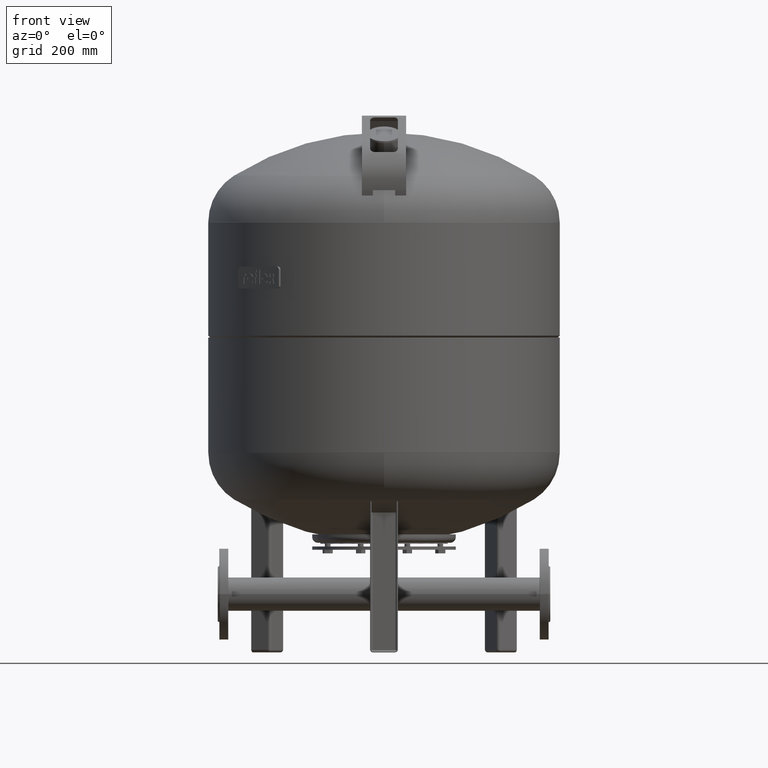
[diagram: clean part render]
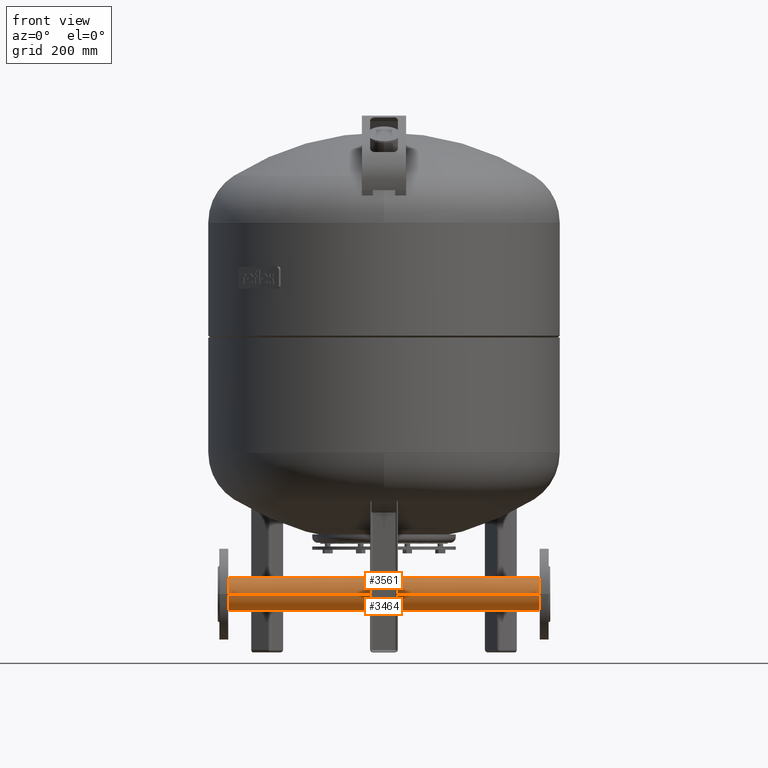
[diagram: same view with one multi-face feature highlighted, each face labeled with its STEP entity id]
A machine part, front view. The highlighted faces form ONE feature: a constant-radius fillet chain: 2 tangent blend faces with common blend radius 30.15 mm. The faces share edges in the B-rep.
Their STEP definitions:
[1] entity #3464 (Cylinder):
#3423=CARTESIAN_POINT('',(-247.500000000000030,0.0,105.000000000000010));
#3424=DIRECTION('',(-1.0,0.0,0.0));
#3425=DIRECTION('',(0.0,-1.0,0.0));
#3426=AXIS2_PLACEMENT_3D('',#3423,#3424,#3425);
#3427=CYLINDRICAL_SURFACE('',#3426,30.149999999999999);
#3428=CARTESIAN_POINT('',(-290.0,-30.149999999999999,105.000000000000010));
#3429=VERTEX_POINT('',#3428);
#3430=CARTESIAN_POINT('',(290.0,-30.149999999999999,105.000000000000010));
#3431=VERTEX_POINT('',#3430);
#3432=CARTESIAN_POINT('',(-290.0,-30.149999999999999,105.000000000000010));
#3433=DIRECTION('',(1.0,0.0,0.0));
#3434=VECTOR('',#3433,580.0);
#3435=LINE('',#3432,#3434);
#3436=EDGE_CURVE('',#3429,#3431,#3435,.T.);
#3437=ORIENTED_EDGE('',*,*,#3436,.F.);
#3438=CARTESIAN_POINT('',(-290.0,30.149999999999999,105.000000000000010));
#3439=VERTEX_POINT('',#3438);
#3440=CARTESIAN_POINT('',(-290.0,0.0,105.000000000000010));
#3441=DIRECTION('',(-1.0,0.0,0.0));
#3442=DIRECTION('',(0.0,-1.0,0.0));
#3443=AXIS2_PLACEMENT_3D('',#3440,#3441,#3442);
#3444=CIRCLE('',#3443,30.149999999999999);
#3445=EDGE_CURVE('',#3439,#3429,#3444,.T.);
#3446=ORIENTED_EDGE('',*,*,#3445,.F.);
#3447=CARTESIAN_POINT('',(290.0,30.149999999999999,105.000000000000010));
#3448=VERTEX_POINT('',#3447);
#3449=CARTESIAN_POINT('',(-290.0,30.149999999999999,105.000000000000010));
#3450=DIRECTION('',(1.0,0.0,0.0));
#3451=VECTOR('',#3450,580.0);
#3452=LINE('',#3449,#3451);
#3453=EDGE_CURVE('',#3439,#3448,#3452,.T.);
#3454=ORIENTED_EDGE('',*,*,#3453,.T.);
#3455=CARTESIAN_POINT('',(290.0,0.0,105.000000000000010));
#3456=DIRECTION('',(-1.0,0.0,0.0));
#3457=DIRECTION('',(0.0,-1.0,0.0));
#3458=AXIS2_PLACEMENT_3D('',#3455,#3456,#3457);
#3459=CIRCLE('',#3458,30.149999999999999);
#3460=EDGE_CURVE('',#3448,#3431,#3459,.T.);
#3461=ORIENTED_EDGE('',*,*,#3460,.T.);
#3462=EDGE_LOOP('',(#3437,#3446,#3454,#3461));
#3463=FACE_OUTER_BOUND('',#3462,.T.);
#3464=ADVANCED_FACE('',(#3463),#3427,.T.);
[2] entity #3561 (Cylinder):
#3342=CARTESIAN_POINT('',(21.199999999999999,-2.609024E-015,135.150000000000010));
#3343=VERTEX_POINT('',#3342);
#3359=CARTESIAN_POINT('',(-21.199999999999999,1.174516E-016,135.150000000000010));
#3360=VERTEX_POINT('',#3359);
#3367=CARTESIAN_POINT('',(-21.199999999999999,1.174516E-016,135.150000000000010));
#3368=CARTESIAN_POINT('',(-21.199999999999999,-0.692424463802574,135.150000000000010));
#3369=CARTESIAN_POINT('',(-21.165935953021979,-1.392810315598920,135.126016699084800));
#3370=CARTESIAN_POINT('',(-21.026689683411448,-2.795547585032419,135.028348546475060));
#3371=CARTESIAN_POINT('',(-20.921514108978613,-3.497899874539565,134.954666738567880));
#3372=CARTESIAN_POINT('',(-20.640293834098223,-4.891147777178428,134.758932043428220));
#3373=CARTESIAN_POINT('',(-20.464233142206339,-5.582164854495862,134.636869678730330));
#3374=CARTESIAN_POINT('',(-20.044298166574940,-6.940570118563637,134.348476881195150));
#3375=CARTESIAN_POINT('',(-19.800430605333130,-7.607962441822135,134.182156143751230));
#3376=CARTESIAN_POINT('',(-18.975653616749948,-9.558091962107202,133.626782597700900));
#3377=CARTESIAN_POINT('',(-18.299365878424485,-10.790956065838744,133.179683922580720));
#3378=CARTESIAN_POINT('',(-16.760689968101303,-13.053382550245647,132.205670783889360));
#3379=CARTESIAN_POINT('',(-15.898221526559425,-14.083105995750191,131.679257316634730));
#3380=CARTESIAN_POINT('',(-14.069634709298327,-15.911692813011289,130.631375307075160));
#3381=CARTESIAN_POINT('',(-13.032483173576519,-16.776835791091745,130.068911244167960));
#3382=CARTESIAN_POINT('',(-10.770474659120383,-18.311327432634471,128.970978657677730));
#3383=CARTESIAN_POINT('',(-9.545638514802816,-18.981139041615187,128.436114363689540));
#3384=CARTESIAN_POINT('',(-7.610014691062727,-19.799453070613165,127.740544089781820));
#3385=CARTESIAN_POINT('',(-6.947878212434456,-20.041603786611901,127.526344684308500));
#3386=CARTESIAN_POINT('',(-5.598491737269096,-20.459613492442507,127.147376885702030));
#3387=CARTESIAN_POINT('',(-4.911223760015368,-20.635469711143067,126.982669462361640));
#3388=CARTESIAN_POINT('',(-3.521485533583976,-20.917501469864487,126.714476737709160));
#3389=CARTESIAN_POINT('',(-2.818855133579346,-21.023692310502291,126.611030354442650));
#3390=CARTESIAN_POINT('',(-1.409466051565068,-21.164947155060695,126.472710198633070));
#3391=CARTESIAN_POINT('',(-0.702702430289923,-21.199999999999999,126.437875361145270));
#3392=CARTESIAN_POINT('',(0.702702430289923,-21.199999999999999,126.437875361145270));
#3393=CARTESIAN_POINT('',(1.409466051565070,-21.164947155060695,126.472710198633070));
#3394=CARTESIAN_POINT('',(2.818855133579349,-21.023692310502291,126.611030354442650));
#3395=CARTESIAN_POINT('',(3.521485533583979,-20.917501469864483,126.714476737709150));
#3396=CARTESIAN_POINT('',(4.911223760015371,-20.635469711143060,126.982669462361630));
#3397=CARTESIAN_POINT('',(5.598491737269102,-20.459613492442507,127.147376885702030));
#3398=CARTESIAN_POINT('',(6.947878212434461,-20.041603786611901,127.526344684308500));
#3399=CARTESIAN_POINT('',(7.610014691062727,-19.799453070613154,127.740544089781820));
#3400=CARTESIAN_POINT('',(9.545638514802814,-18.981139041615187,128.436114363689540));
#3401=CARTESIAN_POINT('',(10.770474659120378,-18.311327432634471,128.970978657677700));
#3402=CARTESIAN_POINT('',(13.032483173576514,-16.776835791091749,130.068911244167960));
#3403=CARTESIAN_POINT('',(14.069634709298320,-15.911692813011291,130.631375307075160));
#3404=CARTESIAN_POINT('',(15.898221526559418,-14.083105995750193,131.679257316634730));
#3405=CARTESIAN_POINT('',(16.760689968101296,-13.053382550245651,132.205670783889360));
#3406=CARTESIAN_POINT('',(18.299365878424478,-10.790956065838753,133.179683922580720));
#3407=CARTESIAN_POINT('',(18.975653616749945,-9.558091962107213,133.626782597700900));
#3408=CARTESIAN_POINT('',(19.800430605333126,-7.607962441822153,134.182156143751230));
#3409=CARTESIAN_POINT('',(20.044298166574929,-6.940570118563654,134.348476881195130));
#3410=CARTESIAN_POINT('',(20.464233142206329,-5.582164854495876,134.636869678730310));
#3411=CARTESIAN_POINT('',(20.640293834098216,-4.891147777178439,134.758932043428220));
#3412=CARTESIAN_POINT('',(20.921514108978613,-3.497899874539569,134.954666738567880));
#3413=CARTESIAN_POINT('',(21.026689683411448,-2.795547585032419,135.028348546475060));
#3414=CARTESIAN_POINT('',(21.165935953021979,-1.392810315598921,135.126016699084800));
#3415=CARTESIAN_POINT('',(21.199999999999999,-0.692424463802574,135.150000000000010));
#3416=CARTESIAN_POINT('',(21.199999999999999,-2.609024E-015,135.150000000000010));
#3417=B_SPLINE_CURVE_WITH_KNOTS('',3,(#3367,#3368,#3369,#3370,#3371,#3372,#3373,#3374,#3375,#3376,#3377,#3378,#3379,#3380,#3381,#3382,#3383,#3384,#3385,#3386,#3387,#3388,#3389,#3390,#3391,#3392,#3393,#3394,#3395,#3396,#3397,#3398,#3399,#3400,#3401,#3402,#3403,#3404,#3405,#3406,#3407,#3408,#3409,#3410,#3411,#3412,#3413,#3414,#3415,#3416),.UNSPECIFIED.,.F.,.U.,(4,2,2,2,2,2,2,2,2,2,2,2,2,2,2,2,2,2,2,2,2,2,2,2,4),(33.483045458219962,35.560318849627684,37.637592241035406,39.714865632443122,41.792139023850844,45.946685806666281,50.101232589481725,54.317447171221275,58.533661752960832,60.641769043830607,62.749876334700389,64.857983625570171,66.966090916439938,69.074198207309706,71.182305498179488,73.290412789049270,75.398520079919038,79.614734661658588,83.830949243398138,87.985496026213582,92.140042809029012,94.217316200436727,96.294589591844456,98.371862983252186,100.449136374659900),.UNSPECIFIED.);
#3418=EDGE_CURVE('',#3360,#3343,#3417,.T.);
#3428=CARTESIAN_POINT('',(-290.0,-30.149999999999999,105.000000000000010));
#3429=VERTEX_POINT('',#3428);
#3430=CARTESIAN_POINT('',(290.0,-30.149999999999999,105.000000000000010));
#3431=VERTEX_POINT('',#3430);
#3432=CARTESIAN_POINT('',(-290.0,-30.149999999999999,105.000000000000010));
#3433=DIRECTION('',(1.0,0.0,0.0));
#3434=VECTOR('',#3433,580.0);
#3435=LINE('',#3432,#3434);
#3436=EDGE_CURVE('',#3429,#3431,#3435,.T.);
#3438=CARTESIAN_POINT('',(-290.0,30.149999999999999,105.000000000000010));
#3439=VERTEX_POINT('',#3438);
#3447=CARTESIAN_POINT('',(290.0,30.149999999999999,105.000000000000010));
#3448=VERTEX_POINT('',#3447);
#3449=CARTESIAN_POINT('',(-290.0,30.149999999999999,105.000000000000010));
#3450=DIRECTION('',(1.0,0.0,0.0));
#3451=VECTOR('',#3450,580.0);
#3452=LINE('',#3449,#3451);
#3453=EDGE_CURVE('',#3439,#3448,#3452,.T.);
#3470=CARTESIAN_POINT('',(290.0,0.0,105.000000000000010));
#3471=DIRECTION('',(-1.0,0.0,0.0));
#3472=DIRECTION('',(0.0,-1.0,0.0));
#3473=AXIS2_PLACEMENT_3D('',#3470,#3471,#3472);
#3474=CIRCLE('',#3473,30.149999999999999);
#3475=EDGE_CURVE('',#3431,#3448,#3474,.T.);
#3481=CARTESIAN_POINT('',(-247.500000000000030,0.0,105.000000000000010));
#3482=DIRECTION('',(-1.0,0.0,0.0));
#3483=DIRECTION('',(0.0,-1.0,0.0));
#3484=AXIS2_PLACEMENT_3D('',#3481,#3482,#3483);
#3485=CYLINDRICAL_SURFACE('',#3484,30.149999999999999);
#3486=ORIENTED_EDGE('',*,*,#3436,.T.);
#3487=ORIENTED_EDGE('',*,*,#3475,.T.);
#3488=ORIENTED_EDGE('',*,*,#3453,.F.);
#3489=CARTESIAN_POINT('',(-290.0,0.0,105.000000000000010));
#3490=DIRECTION('',(-1.0,0.0,0.0));
#3491=DIRECTION('',(0.0,-1.0,0.0));
#3492=AXIS2_PLACEMENT_3D('',#3489,#3490,#3491);
#3493=CIRCLE('',#3492,30.149999999999999);
#3494=EDGE_CURVE('',#3429,#3439,#3493,.T.);
#3495=ORIENTED_EDGE('',*,*,#3494,.F.);
#3496=EDGE_LOOP('',(#3486,#3487,#3488,#3495));
#3497=FACE_OUTER_BOUND('',#3496,.T.);
#3498=CARTESIAN_POINT('',(0.0,21.199999999999999,126.437875361145270));
#3499=VERTEX_POINT('',#3498);
#3500=CARTESIAN_POINT('',(0.0,21.199999999999999,126.437875361145270));
#3501=CARTESIAN_POINT('',(-0.702702430289925,21.199999999999999,126.437875361145270));
#3502=CARTESIAN_POINT('',(-1.409466051565075,21.164947155060695,126.472710198633070));
#3503=CARTESIAN_POINT('',(-2.818855133579354,21.023692310502291,126.611030354442650));
#3504=CARTESIAN_POINT('',(-3.521485533583982,20.917501469864483,126.714476737709150));
#3505=CARTESIAN_POINT('',(-4.911223760015369,20.635469711143060,126.982669462361630));
#3506=CARTESIAN_POINT('',(-5.598491737269096,20.459613492442507,127.147376885702030));
#3507=CARTESIAN_POINT('',(-6.947878212434456,20.041603786611901,127.526344684308480));
#3508=CARTESIAN_POINT('',(-7.610014691062727,19.799453070613161,127.740544089781820));
#3509=CARTESIAN_POINT('',(-9.545638514802814,18.981139041615187,128.436114363689540));
#3510=CARTESIAN_POINT('',(-10.770474659120380,18.311327432634474,128.970978657677700));
#3511=CARTESIAN_POINT('',(-13.032483173576516,16.776835791091749,130.068911244167960));
#3512=CARTESIAN_POINT('',(-14.069634709298324,15.911692813011289,130.631375307075160));
#3513=CARTESIAN_POINT('',(-15.898221526559421,14.083105995750193,131.679257316634730));
#3514=CARTESIAN_POINT('',(-16.760689968101296,13.053382550245651,132.205670783889360));
#3515=CARTESIAN_POINT('',(-18.299365878424481,10.790956065838749,133.179683922580720));
#3516=CARTESIAN_POINT('',(-18.975653616749952,9.558091962107206,133.626782597700900));
#3517=CARTESIAN_POINT('',(-19.800430605333130,7.607962441822140,134.182156143751230));
#3518=CARTESIAN_POINT('',(-20.044298166574933,6.940570118563643,134.348476881195150));
#3519=CARTESIAN_POINT('',(-20.464233142206332,5.582164854495864,134.636869678730330));
#3520=CARTESIAN_POINT('',(-20.640293834098223,4.891147777178427,134.758932043428220));
#3521=CARTESIAN_POINT('',(-20.921514108978613,3.497899874539563,134.954666738567880));
#3522=CARTESIAN_POINT('',(-21.026689683411448,2.795547585032418,135.028348546475060));
#3523=CARTESIAN_POINT('',(-21.165935953021979,1.392810315598922,135.126016699084800));
#3524=CARTESIAN_POINT('',(-21.199999999999999,0.692424463802573,135.150000000000010));
#3525=CARTESIAN_POINT('',(-21.199999999999999,1.174516E-016,135.150000000000010));
#3526=B_SPLINE_CURVE_WITH_KNOTS('',3,(#3500,#3501,#3502,#3503,#3504,#3505,#3506,#3507,#3508,#3509,#3510,#3511,#3512,#3513,#3514,#3515,#3516,#3517,#3518,#3519,#3520,#3521,#3522,#3523,#3524,#3525),.UNSPECIFIED.,.F.,.U.,(4,2,2,2,2,2,2,2,2,2,2,2,4),(0.0,2.108107290869776,4.216214581739552,6.324321872609327,8.432429163479103,12.648643745218655,16.864858326958206,21.019405109773643,25.173951892589084,27.251225283996803,29.328498675404525,31.405772066812244,33.483045458219962),.UNSPECIFIED.);
#3527=EDGE_CURVE('',#3499,#3360,#3526,.T.);
#3528=ORIENTED_EDGE('',*,*,#3527,.F.);
#3529=CARTESIAN_POINT('',(21.199999999999999,-2.609024E-015,135.150000000000010));
#3530=CARTESIAN_POINT('',(21.199999999999999,0.692424463802569,135.150000000000010));
#3531=CARTESIAN_POINT('',(21.165935953021979,1.392810315598911,135.126016699084800));
#3532=CARTESIAN_POINT('',(21.026689683411448,2.795547585032410,135.028348546475060));
#3533=CARTESIAN_POINT('',(20.921514108978613,3.497899874539560,134.954666738567880));
#3534=CARTESIAN_POINT('',(20.640293834098223,4.891147777178428,134.758932043428220));
#3535=CARTESIAN_POINT('',(20.464233142206332,5.582164854495866,134.636869678730330));
#3536=CARTESIAN_POINT('',(20.044298166574933,6.940570118563644,134.348476881195150));
#3537=CARTESIAN_POINT('',(19.800430605333126,7.607962441822141,134.182156143751230));
#3538=CARTESIAN_POINT('',(18.975653616749952,9.558091962107202,133.626782597700900));
#3539=CARTESIAN_POINT('',(18.299365878424481,10.790956065838742,133.179683922580720));
#3540=CARTESIAN_POINT('',(16.760689968101300,13.053382550245646,132.205670783889360));
#3541=CARTESIAN_POINT('',(15.898221526559425,14.083105995750188,131.679257316634730));
#3542=CARTESIAN_POINT('',(14.069634709298331,15.911692813011285,130.631375307075160));
#3543=CARTESIAN_POINT('',(13.032483173576525,16.776835791091742,130.068911244167960));
#3544=CARTESIAN_POINT('',(10.770474659120385,18.311327432634471,128.970978657677700));
#3545=CARTESIAN_POINT('',(9.545638514802814,18.981139041615187,128.436114363689540));
#3546=CARTESIAN_POINT('',(7.610014691062720,19.799453070613161,127.740544089781820));
#3547=CARTESIAN_POINT('',(6.947878212434449,20.041603786611905,127.526344684308500));
#3548=CARTESIAN_POINT('',(5.598491737269084,20.459613492442511,127.147376885702030));
#3549=CARTESIAN_POINT('',(4.911223760015356,20.635469711143067,126.982669462361630));
#3550=CARTESIAN_POINT('',(3.521485533583963,20.917501469864487,126.714476737709150));
#3551=CARTESIAN_POINT('',(2.818855133579334,21.023692310502295,126.611030354442650));
#3552=CARTESIAN_POINT('',(1.409466051565060,21.164947155060695,126.472710198633070));
#3553=CARTESIAN_POINT('',(0.702702430289918,21.199999999999999,126.437875361145270));
#3554=CARTESIAN_POINT('',(0.0,21.199999999999999,126.437875361145270));
#3555=B_SPLINE_CURVE_WITH_KNOTS('',3,(#3529,#3530,#3531,#3532,#3533,#3534,#3535,#3536,#3537,#3538,#3539,#3540,#3541,#3542,#3543,#3544,#3545,#3546,#3547,#3548,#3549,#3550,#3551,#3552,#3553,#3554),.UNSPECIFIED.,.F.,.U.,(4,2,2,2,2,2,2,2,2,2,2,2,4),(100.449136374659900,102.526409766067620,104.603683157475340,106.680956548883070,108.758229940290790,112.912776723106220,117.067323505921660,121.283538087661210,125.499752669400780,127.607859960270560,129.715967251140340,131.824074542010120,133.932181832879880),.UNSPECIFIED.);
#3556=EDGE_CURVE('',#3343,#3499,#3555,.T.);
#3557=ORIENTED_EDGE('',*,*,#3556,.F.);
#3558=ORIENTED_EDGE('',*,*,#3418,.F.);
#3559=EDGE_LOOP('',(#3528,#3557,#3558));
#3560=FACE_BOUND('',#3559,.T.);
#3561=ADVANCED_FACE('',(#3497,#3560),#3485,.T.);